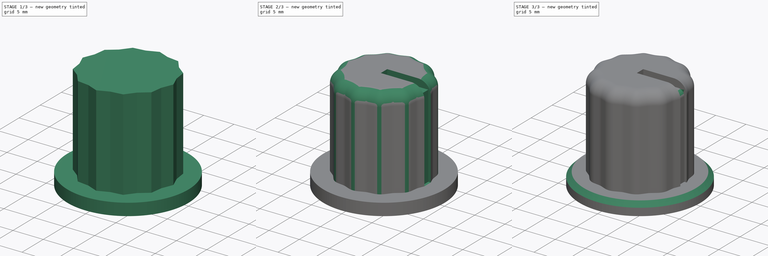
[diagram: build sequence overview — one tinted view per stage of 3, left to right]
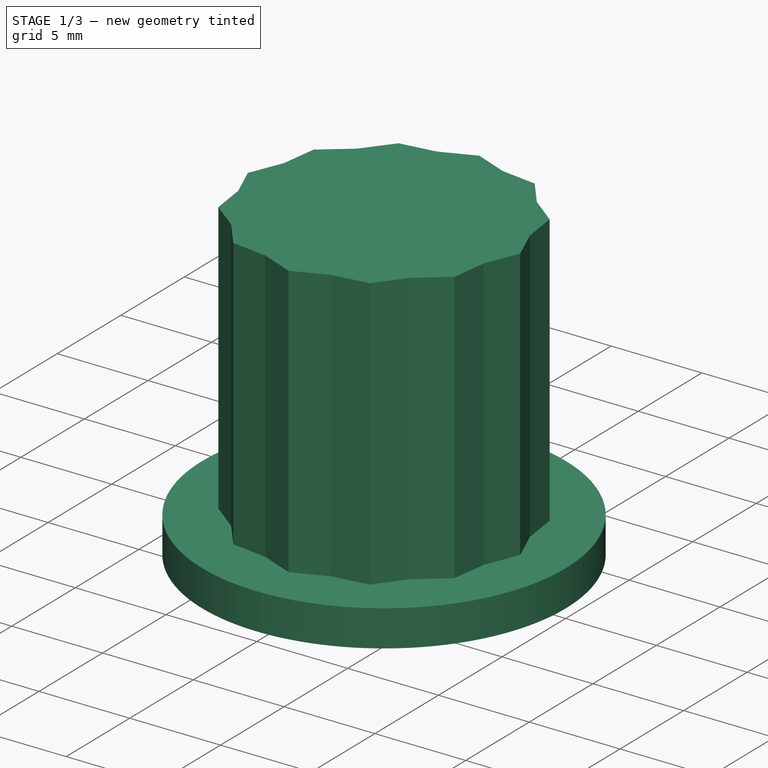
[diagram: stage 1 of 3 — iso view after this stage's code; geometry added in this stage tinted green]
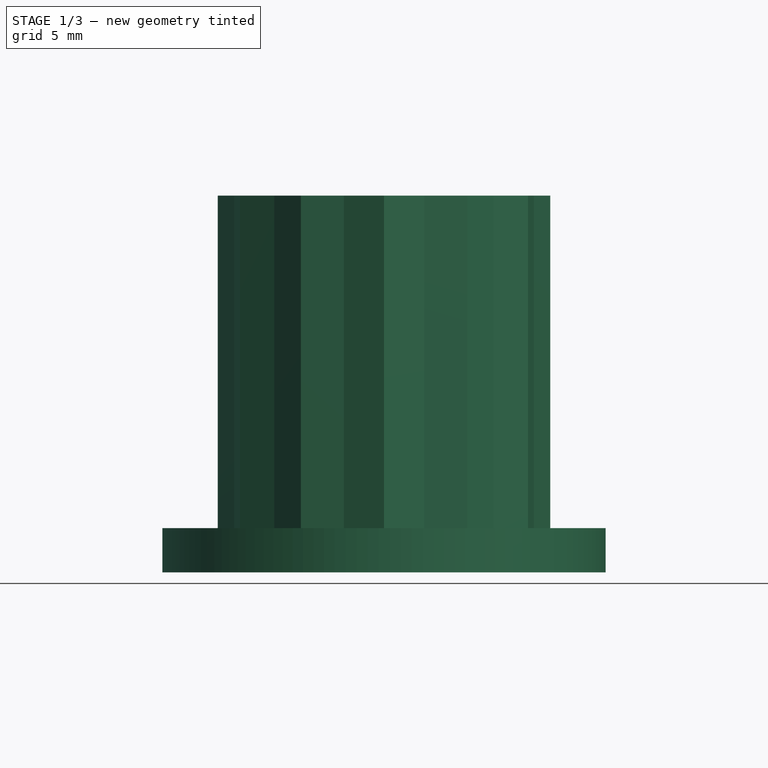
[diagram: stage 1 of 3 — front view after this stage's code; geometry added in this stage tinted green]
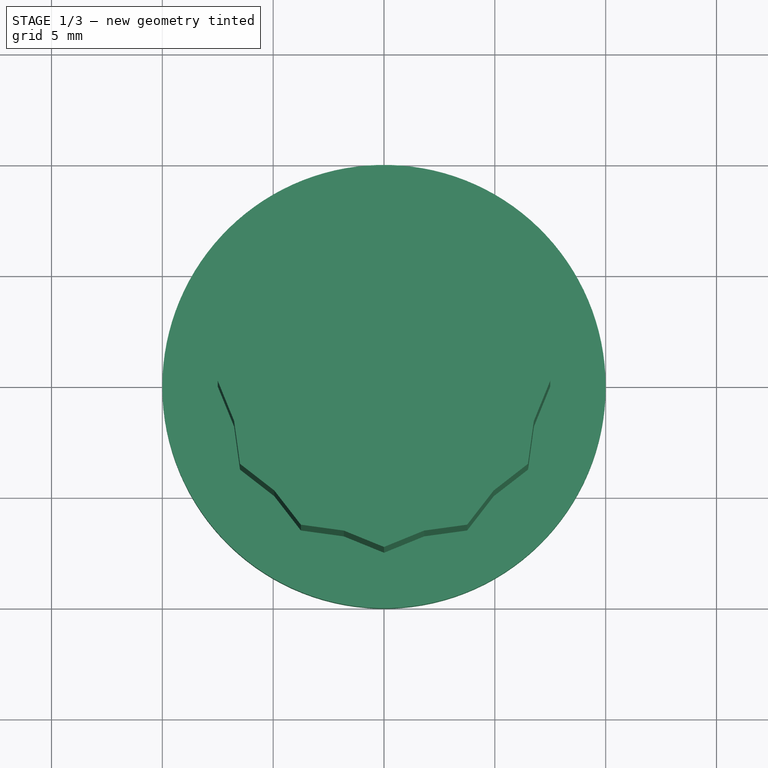
[diagram: stage 1 of 3 — top view after this stage's code; geometry added in this stage tinted green]
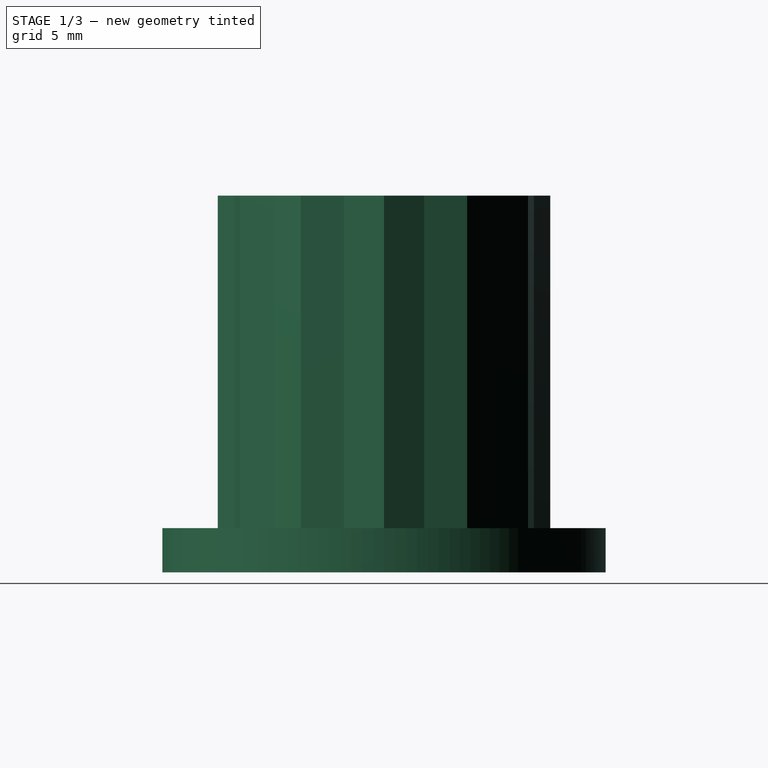
[diagram: stage 1 of 3 — right view after this stage's code; geometry added in this stage tinted green]
FCSTD DOCUMENT  (FreeCAD 1.0R39319 (Git))
Label: Knob
objects: Sketcher::SketchObject×4, PartDesign::Pad×2, PartDesign::Fillet×2, PartDesign::Pocket×2, PartDesign::Plane×1, PartDesign::Chamfer×1, PartDesign::Body×1
note: 31 computed .brp shape members not serialized (recipe doc carries the construction recipe); baked Part::Feature solids carry a one-line shape summary decoded from their .brp

FEATURE [Sketcher::SketchObject] Sketch
  ArcFitTolerance = 1e-06
  AttachmentSupport = -> [XY_Plane]
  FullyConstrained = true
  MakeInternals = false
  MapMode = 5
  sketch-geometry (27):
    g0: Circle [constr] CenterX=0 CenterY=0 CenterZ=0 NormalX=0 NormalY=0 NormalZ=1 AngleXU=0 Radius=7.5
    g1: Circle [constr] CenterX=0 CenterY=0 CenterZ=0 NormalX=0 NormalY=0 NormalZ=1 AngleXU=0 Radius=7
    g2: Circle [constr] CenterX=0 CenterY=0 CenterZ=0 NormalX=0 NormalY=0 NormalZ=1 AngleXU=0 Radius=7.5
    g3: LineSegment StartX=7.5 StartY=0 StartZ=0 EndX=6.76148 EndY=1.81173 EndZ=0
    g4: LineSegment StartX=6.76148 StartY=1.81173 StartZ=0 EndX=6.49519 EndY=3.75 EndZ=0
    g5: LineSegment StartX=6.49519 StartY=3.75 StartZ=0 EndX=4.94975 EndY=4.94975 EndZ=0
    g6: LineSegment StartX=4.94975 StartY=4.94975 StartZ=0 EndX=3.75 EndY=6.49519 EndZ=0
    g7: LineSegment StartX=3.75 StartY=6.49519 StartZ=0 EndX=1.81173 EndY=6.76148 EndZ=0
    g8: LineSegment StartX=1.81173 StartY=6.76148 StartZ=0 EndX=-7e-16 EndY=7.5 EndZ=0
    g9: LineSegment StartX=-7e-16 StartY=7.5 StartZ=0 EndX=-1.81173 EndY=6.76148 EndZ=0
    g10: LineSegment StartX=-1.81173 StartY=6.76148 StartZ=0 EndX=-3.75 EndY=6.49519 EndZ=0
    g11: LineSegment StartX=-3.75 StartY=6.49519 StartZ=0 EndX=-4.94975 EndY=4.94975 EndZ=0
    g12: LineSegment StartX=-4.94975 StartY=4.94975 StartZ=0 EndX=-6.49519 EndY=3.75 EndZ=0
    g13: LineSegment StartX=-6.49519 StartY=3.75 StartZ=0 EndX=-6.76148 EndY=1.81173 EndZ=0
    g14: LineSegment StartX=-6.76148 StartY=1.81173 StartZ=0 EndX=-7.5 EndY=-2e-16 EndZ=0
    g15: LineSegment StartX=-7.5 StartY=-2e-16 StartZ=0 EndX=-6.76148 EndY=-1.81173 EndZ=0
    g16: LineSegment StartX=-6.76148 StartY=-1.81173 StartZ=0 EndX=-6.49519 EndY=-3.75 EndZ=0
    g17: LineSegment StartX=-6.49519 StartY=-3.75 StartZ=0 EndX=-4.94975 EndY=-4.94975 EndZ=0
    g18: LineSegment StartX=-4.94975 StartY=-4.94975 StartZ=0 EndX=-3.75 EndY=-6.49519 EndZ=0
    g19: LineSegment StartX=-3.75 StartY=-6.49519 StartZ=0 EndX=-1.81173 EndY=-6.76148 EndZ=0
    g20: LineSegment StartX=-1.81173 StartY=-6.76148 StartZ=0 EndX=2e-16 EndY=-7.5 EndZ=0
    g21: LineSegment StartX=2e-16 StartY=-7.5 StartZ=0 EndX=1.81173 EndY=-6.76148 EndZ=0
    g22: LineSegment StartX=1.81173 StartY=-6.76148 StartZ=0 EndX=3.75 EndY=-6.49519 EndZ=0
    g23: LineSegment StartX=3.75 StartY=-6.49519 StartZ=0 EndX=4.94975 EndY=-4.94975 EndZ=0
    g24: LineSegment StartX=4.94975 StartY=-4.94975 StartZ=0 EndX=6.49519 EndY=-3.75 EndZ=0
    g25: LineSegment StartX=6.49519 StartY=-3.75 StartZ=0 EndX=6.76148 EndY=-1.81173 EndZ=0
    g26: LineSegment StartX=6.76148 StartY=-1.81173 StartZ=0 EndX=7.5 EndY=0 EndZ=0
  constraints (78):
    c: Diameter(g0) = 15
    c: Coincident(g0,g-1)
    c: Diameter(g1) = 14
    c: Coincident(g1,g0)
    c: Coincident(g24,g25)
    c: Coincident(g26,g3)
    c: Coincident(g4,g5)
    c: Coincident(g6,g7)
    c: Coincident(g8,g9)
    c: Coincident(g10,g11)
    c: Coincident(g12,g13)
    c: Coincident(g14,g15)
    c: Coincident(g16,g17)
    c: Coincident(g18,g19)
    c: Coincident(g20,g21)
    c: Coincident(g22,g23)
    c: PointOnObject(g24,g2)
    c: PointOnObject(g26,g2)
    c: PointOnObject(g4,g2)
    c: PointOnObject(g6,g2)
    c: PointOnObject(g8,g2)
    c: PointOnObject(g10,g2)
    c: PointOnObject(g12,g2)
    c: PointOnObject(g14,g2)
    c: PointOnObject(g16,g2)
    c: PointOnObject(g18,g2)
    c: PointOnObject(g20,g2)
    c: PointOnObject(g22,g2)
    c: Coincident(g2,g0)
    c: PointOnObject(g22,g0)
    c: PointOnObject(g26,g-1)
    c: Coincident(g3,g4)
    c: Coincident(g5,g6)
    c: Coincident(g7,g8)
    c: Coincident(g9,g10)
    c: Coincident(g11,g12)
    c: Coincident(g13,g14)
    c: Coincident(g15,g16)
    c: Coincident(g17,g18)
    c: Coincident(g19,g20)
    c: Coincident(g21,g22)
    c: PointOnObject(g21,g1)
    c: PointOnObject(g19,g1)
    c: PointOnObject(g17,g1)
    c: PointOnObject(g15,g1)
    c: PointOnObject(g13,g1)
    c: PointOnObject(g11,g1)
    c: PointOnObject(g9,g1)
    c: PointOnObject(g7,g1)
    c: PointOnObject(g5,g1)
    c: PointOnObject(g3,g1)
    c: Coincident(g23,g24)
    c: Coincident(g25,g26)
    c: PointOnObject(g23,g1)
    c: PointOnObject(g25,g1)
    c: Equal(g13,g12)
    c: Equal(g12,g11)
    c: Equal(g11,g10)
    c: Equal(g10,g9)
    c: Equal(g9,g8)
    c: Equal(g8,g7)
    c: Equal(g7,g6)
    c: Equal(g6,g5)
    c: Equal(g5,g4)
    c: Equal(g4,g3)
    c: Equal(g3,g26)
    c: Equal(g26,g25)
    c: Equal(g25,g24)
    c: Equal(g24,g23)
    c: Equal(g23,g22)
    c: Equal(g22,g21)
    c: Equal(g21,g20)
    c: Equal(g20,g19)
    c: Equal(g19,g18)
    c: Equal(g18,g17)
    c: Equal(g17,g16)
    c: Equal(g16,g15)
    c: Equal(g15,g14)
FEATURE [PartDesign::Pad] Pad
  Direction = (0,0,1)
  Length = 15
  Length2 = 10
  Profile = -> Sketch
  ReferenceAxis = -> Sketch [N_Axis]
  Refine = true
  Suppressed = false
  Type = 0
FEATURE [Sketcher::SketchObject] Sketch001
  ArcFitTolerance = 1e-06
  AttachmentSupport = -> [Pad]
  FullyConstrained = true
  MakeInternals = false
  MapMode = 5
  Placement = pos=(0,0,0) rot=(1,0,0;3.14159rad)
  sketch-geometry (1):
    g0: Circle CenterX=0 CenterY=0 CenterZ=0 NormalX=0 NormalY=0 NormalZ=1 AngleXU=0 Radius=10
  constraints (2):
    c: Diameter(g0) = 20
    c: Coincident(g0,g-1)
FEATURE [PartDesign::Pad] Pad001
  BaseFeature = -> Pad
  Direction = (0,0,-1)
  Length = 2
  Length2 = 10
  Profile = -> Sketch001
  ReferenceAxis = -> Sketch001 [N_Axis]
  Refine = true
  Suppressed = false
  Type = 0
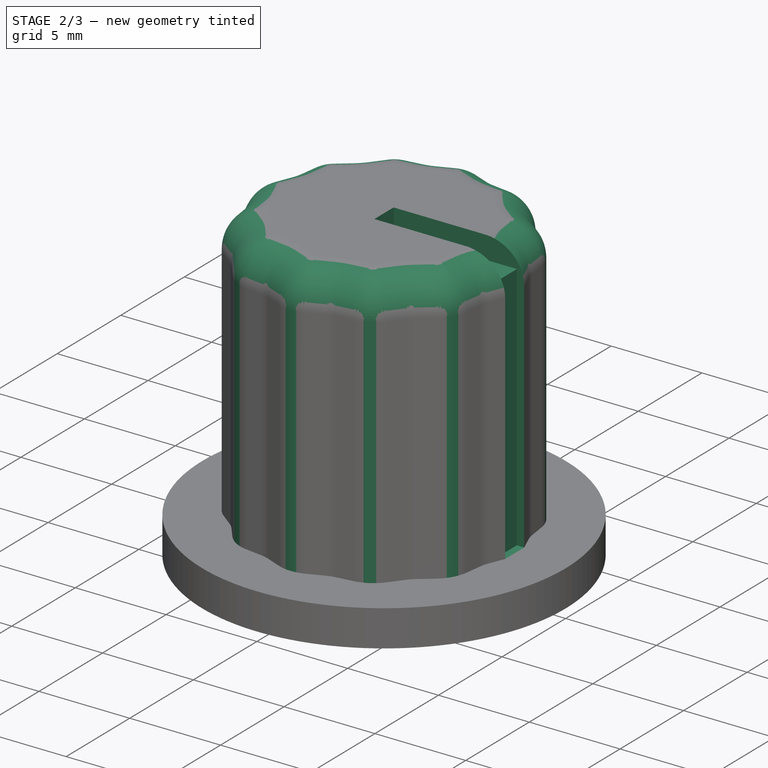
[diagram: stage 2 of 3 — iso view after this stage's code; geometry added in this stage tinted green]
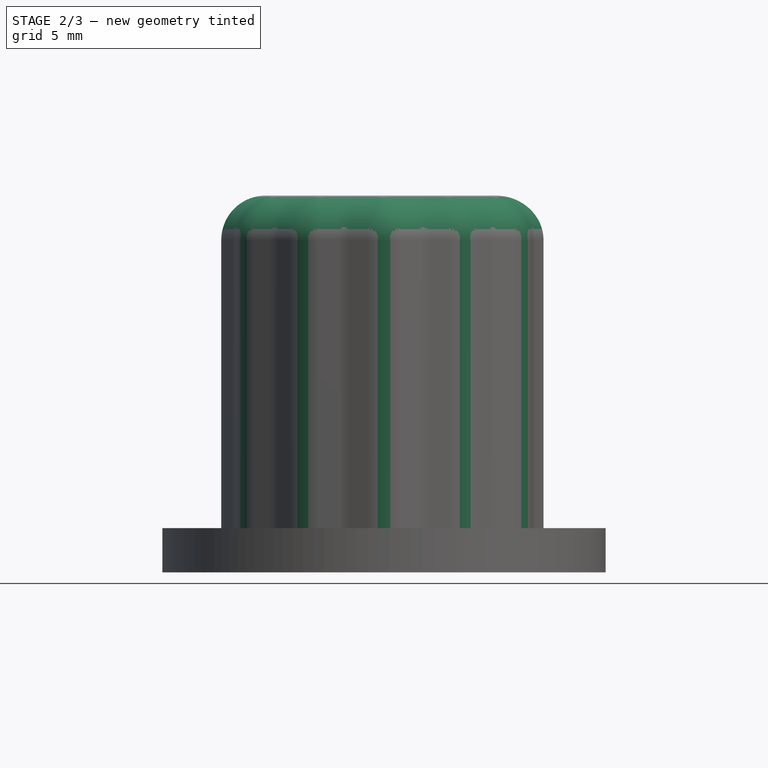
[diagram: stage 2 of 3 — front view after this stage's code; geometry added in this stage tinted green]
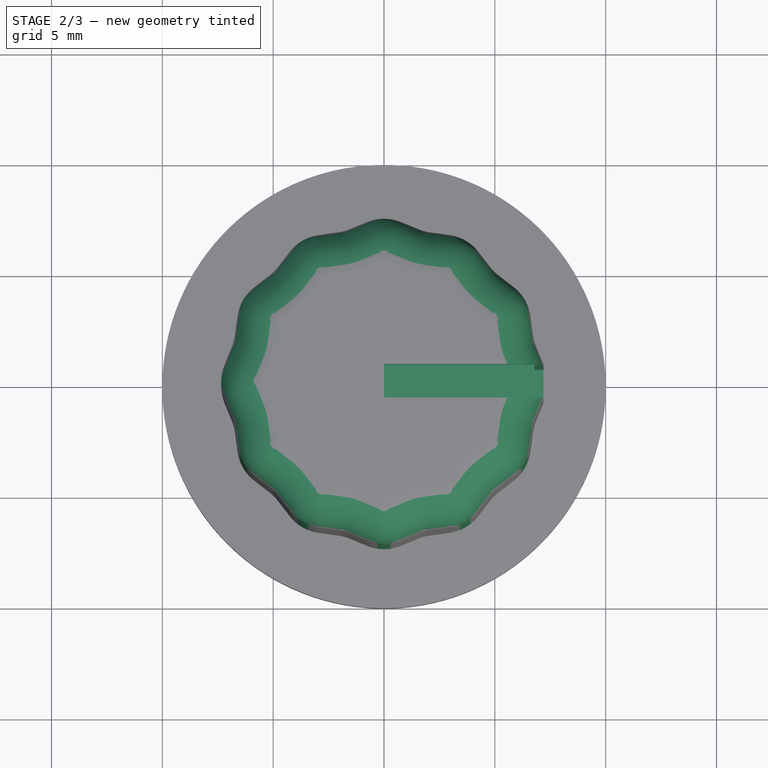
[diagram: stage 2 of 3 — top view after this stage's code; geometry added in this stage tinted green]
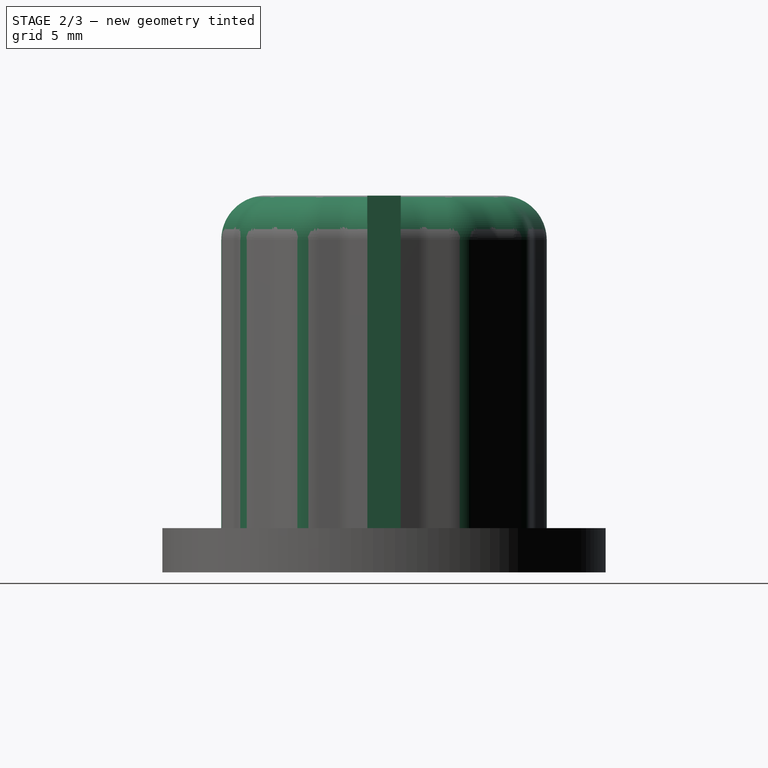
[diagram: stage 2 of 3 — right view after this stage's code; geometry added in this stage tinted green]
FEATURE [PartDesign::Fillet] Fillet
  Base = -> Pad001 [Face5,Edge70,Edge71,Edge72,Edge73,Edge74,Edge75,Edge54,Edge5,Edge1,Edge2,Edge8,Edge55,Edge58,Edge59,Edge60,Edge61,Edge62,Edge63,Edge64,Edge65,Edge66,Edge67,Edge68,Edge69]
  BaseFeature = -> Pad001
  Radius = 2
  Refine = true
  SupportTransform = false
  Suppressed = false
  UseAllEdges = false
FEATURE [Sketcher::SketchObject] Sketch002
  ArcFitTolerance = 1e-06
  AttachmentSupport = -> [Fillet]
  ExternalGeometry = -> [Fillet]
  FullyConstrained = true
  MakeInternals = false
  MapMode = 5
  Placement = pos=(0,0,15) rot=(0,0,1;0rad)
  sketch-geometry (4):
    g0: LineSegment StartX=7.19226 StartY=0.754949 StartZ=0 EndX=0 EndY=0.754949 EndZ=0
    g1: LineSegment StartX=0 StartY=0.754949 StartZ=0 EndX=0 EndY=-0.754949 EndZ=0
    g2: LineSegment StartX=0 StartY=-0.754949 StartZ=0 EndX=7.19226 EndY=-0.754949 EndZ=0
    g3: ArcOfCircle CenterX=5.34022 CenterY=-9e-16 CenterZ=0 NormalX=0 NormalY=0 NormalZ=1 AngleXU=0 Radius=2 StartAngle=5.89612 EndAngle=6.67025
  constraints (11):
    c: Coincident(g0,g-3)
    c: PointOnObject(g0,g-2)
    c: Horizontal(g0)
    c: Coincident(g1,g0)
    c: PointOnObject(g1,g-2)
    c: Coincident(g2,g1)
    c: Coincident(g2,g-3)
    c: Horizontal(g2)
    c: Coincident(g3,g0)
    c: Coincident(g3,g2)
    c: Tangent(g3,g-3)
FEATURE [PartDesign::Pocket] Pocket
  BaseFeature = -> Fillet
  Direction = (0,0,-1)
  Length = 1.25
  Length2 = 5
  Profile = -> Sketch002
  ReferenceAxis = -> Sketch002 [N_Axis]
  Refine = true
  Suppressed = false
  Type = 0
FEATURE [PartDesign::Plane] DatumPlane
  AttachmentOffset = pos=(0,0,0.5) rot=(0,0,1;0rad)
  AttachmentSupport = -> [Pocket]
  Length = 60
  MapMode = 45
  Placement = pos=(7.79065,-3e-16,6.5) rot=(0.57735,0.57735,0.57735;2.0944rad)
  ResizeMode = 0
  Width = 60
FEATURE [Sketcher::SketchObject] Sketch003
  ArcFitTolerance = 1e-06
  AttachmentSupport = -> [DatumPlane]
  ExternalGeometry = -> [Pocket]
  FullyConstrained = true
  MakeInternals = false
  MapMode = 5
  Placement = pos=(7.79065,-3e-16,6.5) rot=(0.57735,0.57735,0.57735;2.0944rad)
  sketch-geometry (9):
    g0: LineSegment StartX=-0.75 StartY=6.5 StartZ=0 EndX=-0.75 EndY=-6.5 EndZ=0
    g1: LineSegment StartX=-0.75 StartY=-6.5 StartZ=0 EndX=0.75 EndY=-6.5 EndZ=0
    g2: LineSegment StartX=0.75 StartY=-6.5 StartZ=0 EndX=0.75 EndY=6.5 EndZ=0
    g3: LineSegment [constr] StartX=0.75 StartY=6.5 StartZ=0 EndX=-0.75 EndY=6.5 EndZ=0
    g4: GeomPoint [constr] X=0 Y=0 Z=0
    g5: LineSegment [constr] StartX=-0.75 StartY=6.5 StartZ=0 EndX=0.75 EndY=6.5 EndZ=0
    g6: LineSegment StartX=0.75 StartY=6.5 StartZ=0 EndX=0.75 EndY=7.25 EndZ=0
    g7: LineSegment StartX=0.75 StartY=7.25 StartZ=0 EndX=-0.75 EndY=7.25 EndZ=0
    g8: LineSegment StartX=-0.75 StartY=7.25 StartZ=0 EndX=-0.75 EndY=6.5 EndZ=0
  constraints (23):
    c: Coincident(g0,g1)
    c: Coincident(g1,g2)
    c: Coincident(g2,g3)
    c: Coincident(g3,g0)
    c: Vertical(g0)
    c: Vertical(g2)
    c: Horizontal(g1)
    c: Horizontal(g3)
    c: Symmetric(g2,g0,g4)
    c: Coincident(g4,g-1)
    c: Distance(g3,g3) = 1.5
    c: PointOnObject(g0,g-3)
    c: Coincident(g5,g6)
    c: Coincident(g6,g7)
    c: Coincident(g7,g8)
    c: Coincident(g8,g5)
    c: Horizontal(g5)
    c: Horizontal(g7)
    c: Vertical(g6)
    c: Vertical(g8)
    c: Coincident(g5,g0)
    c: PointOnObject(g5,g2)
    c: PointOnObject(g7,g-5)
FEATURE [PartDesign::Pocket] Pocket001
  BaseFeature = -> Pocket
  Direction = (-1,0,0)
  Length = 1
  Length2 = 5
  Profile = -> Sketch003
  ReferenceAxis = -> Sketch003 [N_Axis]
  Refine = true
  Suppressed = false
  Type = 0
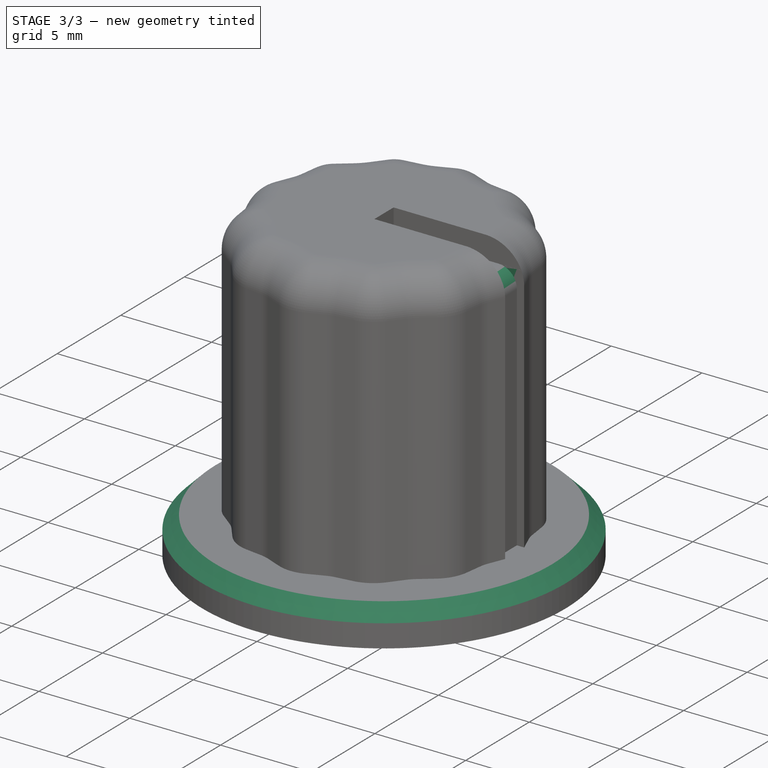
[diagram: stage 3 of 3 — iso view after this stage's code; geometry added in this stage tinted green]
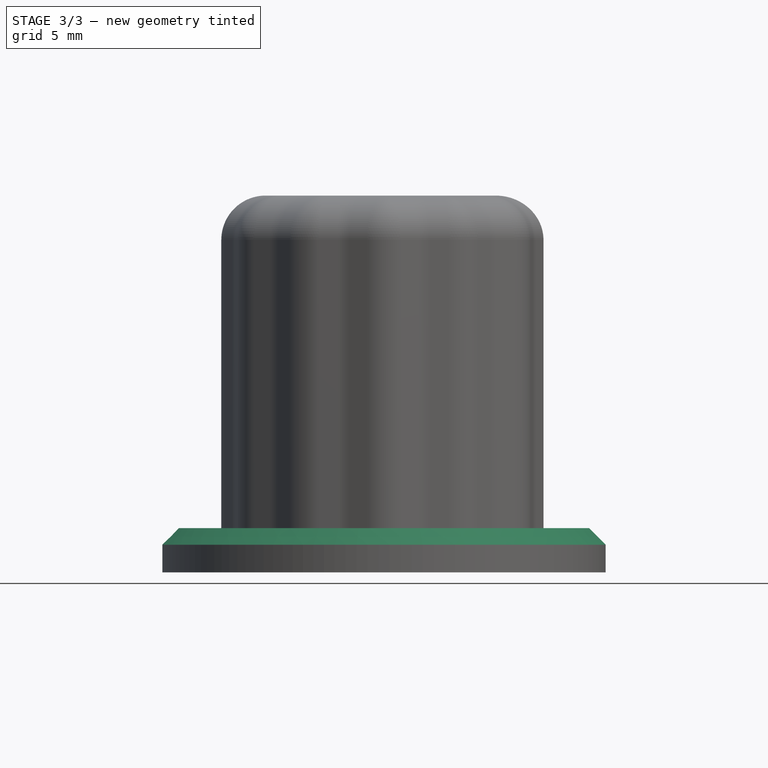
[diagram: stage 3 of 3 — front view after this stage's code; geometry added in this stage tinted green]
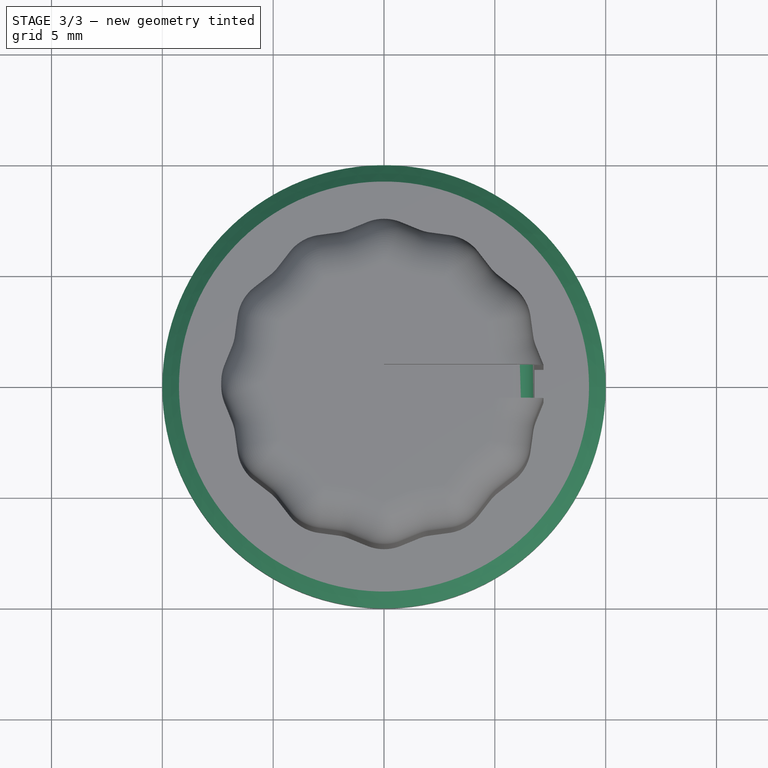
[diagram: stage 3 of 3 — top view after this stage's code; geometry added in this stage tinted green]
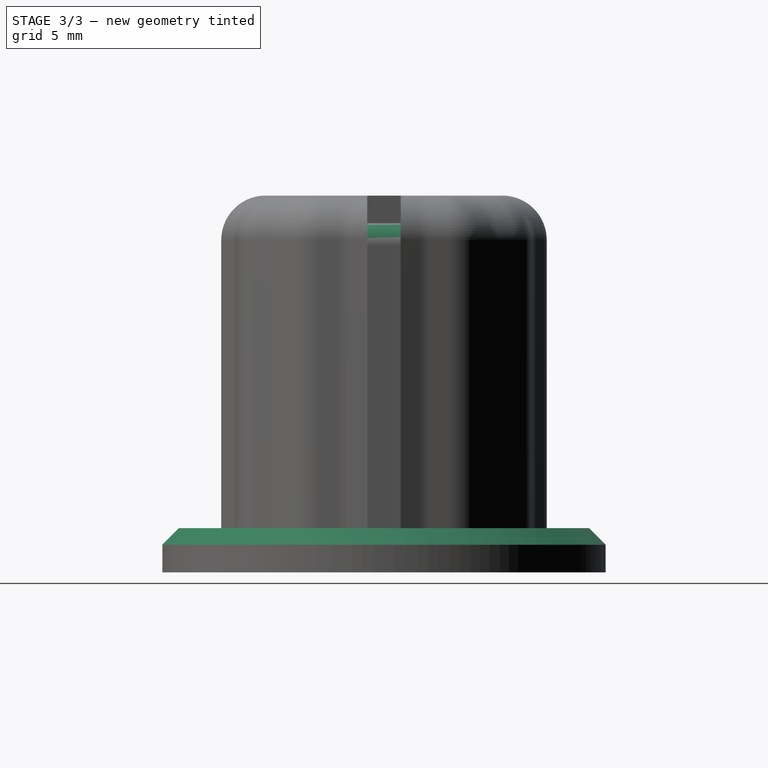
[diagram: stage 3 of 3 — right view after this stage's code; geometry added in this stage tinted green]
FEATURE [PartDesign::Fillet] Fillet001
  Base = -> Pocket001 [Edge205]
  BaseFeature = -> Pocket001
  Radius = 1
  Refine = true
  SupportTransform = false
  Suppressed = false
  UseAllEdges = false
FEATURE [PartDesign::Chamfer] Chamfer
  Angle = 45
  Base = -> Fillet001 [Edge14]
  BaseFeature = -> Fillet001
  ChamferType = 0
  FlipDirection = false
  Refine = true
  Size = 0.75
  Size2 = 1
  SupportTransform = false
  Suppressed = false
  UseAllEdges = false
FEATURE [PartDesign::Body] Body
  AllowCompound = false
  Group = -> [Sketch,Pad,Sketch001,Pad001,Fillet,Sketch002,Pocket,DatumPlane,Sketch003,Pocket001,Fillet001,Chamfer]
  Origin = -> Origin
  Tip = -> Chamfer
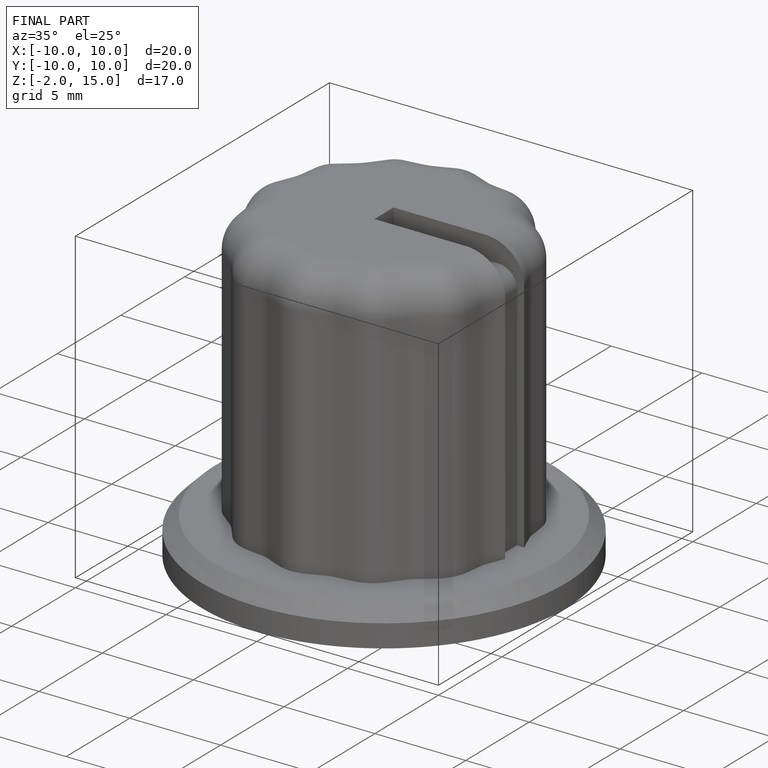
[diagram: finished part — iso view with bounding-box wireframe]
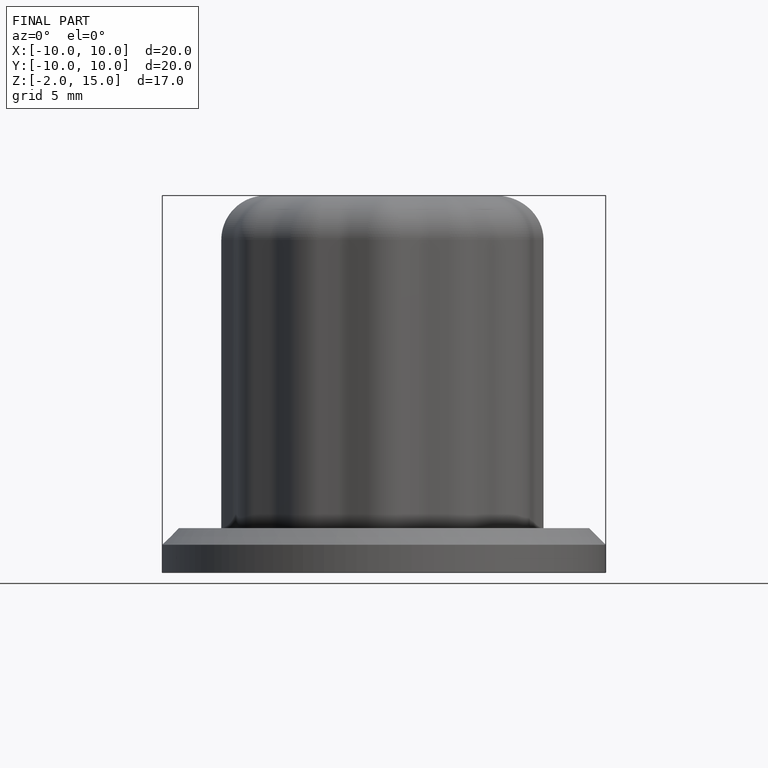
[diagram: finished part — front view with bounding-box wireframe]
